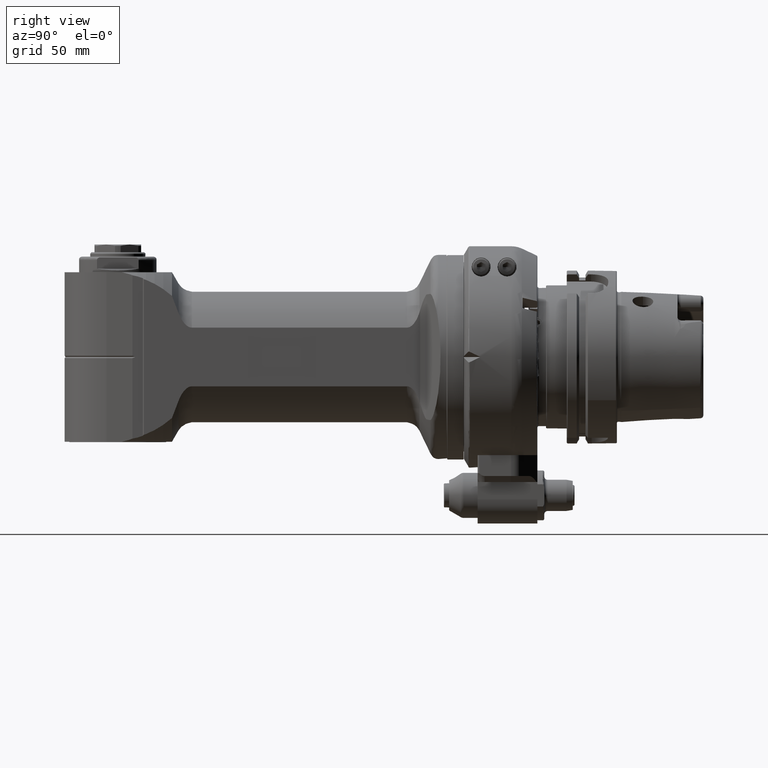
[diagram: clean part render]
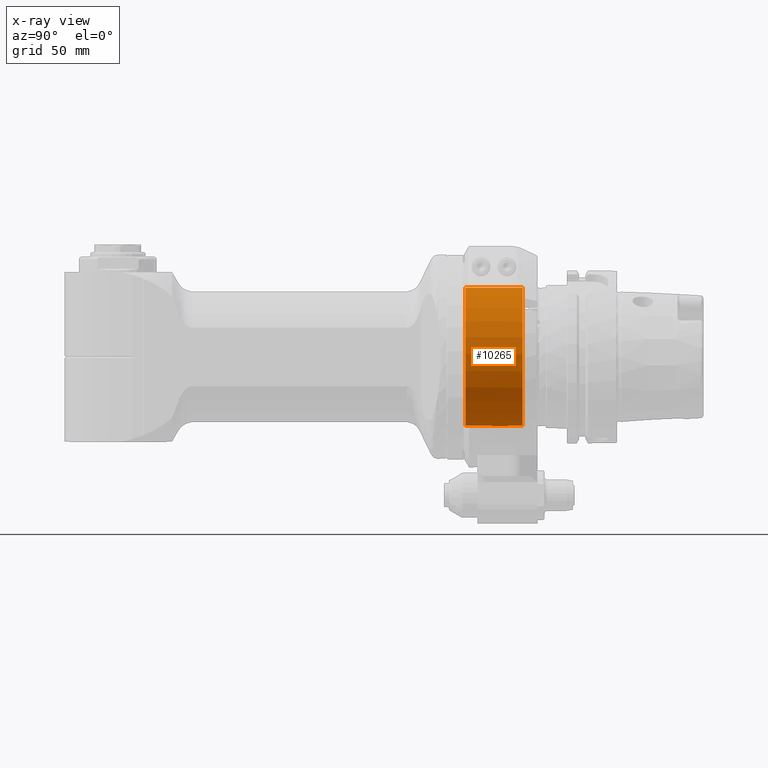
[diagram: x-ray — body ghosted, one internal face saturated and labeled with its STEP entity id]
A machine part, right view, then the same camera in x-ray: the body is ghosted and one INTERNAL B-rep face — a face not visible from any outside direction — is saturated and labeled: STEP entity #10265.
In plain terms, the highlighted cylindrical surface (partial cylindrical patch) has radius 40 mm, axis along (0, -1, 0).
Its self-contained STEP definition (entity closure, byte-faithful):
#393=CYLINDRICAL_SURFACE('',#10994,40.);
#722=CIRCLE('',#10984,40.);
#727=CIRCLE('',#10995,40.);
#728=CIRCLE('',#10996,40.);
#729=CIRCLE('',#10997,40.);
#1279=FACE_OUTER_BOUND('',#1923,.T.);
#1923=EDGE_LOOP('',(#6943,#6944,#6945,#6946,#6947,#6948,#6949,#6950));
#2813=LINE('',#15492,#3480);
#2821=LINE('',#15584,#3488);
#2834=LINE('',#15776,#3501);
#2838=LINE('',#15786,#3505);
#3480=VECTOR('',#12219,32.99999976923);
#3488=VECTOR('',#12249,32.99999976923);
#3501=VECTOR('',#12308,8.499999538462);
#3505=VECTOR('',#12318,8.499999538462);
#4170=VERTEX_POINT('',#15489);
#4171=VERTEX_POINT('',#15491);
#4185=VERTEX_POINT('',#15581);
#4186=VERTEX_POINT('',#15583);
#4205=VERTEX_POINT('',#15711);
#4215=VERTEX_POINT('',#15775);
#4217=VERTEX_POINT('',#15783);
#4218=VERTEX_POINT('',#15785);
#5230=EDGE_CURVE('',#4171,#4170,#2813,.T.);
#5251=EDGE_CURVE('',#4186,#4185,#2821,.T.);
#5276=EDGE_CURVE('',#4186,#4205,#722,.T.);
#5291=EDGE_CURVE('',#4215,#4205,#2834,.T.);
#5295=EDGE_CURVE('',#4171,#4185,#727,.T.);
#5296=EDGE_CURVE('',#4217,#4170,#728,.T.);
#5297=EDGE_CURVE('',#4217,#4218,#2838,.T.);
#5298=EDGE_CURVE('',#4215,#4218,#729,.T.);
#6943=ORIENTED_EDGE('',*,*,#5295,.F.);
#6944=ORIENTED_EDGE('',*,*,#5230,.T.);
#6945=ORIENTED_EDGE('',*,*,#5296,.F.);
#6946=ORIENTED_EDGE('',*,*,#5297,.T.);
#6947=ORIENTED_EDGE('',*,*,#5298,.F.);
#6948=ORIENTED_EDGE('',*,*,#5291,.T.);
#6949=ORIENTED_EDGE('',*,*,#5276,.F.);
#6950=ORIENTED_EDGE('',*,*,#5251,.T.);
#10265=ADVANCED_FACE('',(#1279),#393,.F.);
#10984=AXIS2_PLACEMENT_3D('',#15712,#12282,#12283);
#10994=AXIS2_PLACEMENT_3D('',#15781,#12312,#12313);
#10995=AXIS2_PLACEMENT_3D('',#15782,#12314,#12315);
#10996=AXIS2_PLACEMENT_3D('',#15784,#12316,#12317);
#10997=AXIS2_PLACEMENT_3D('',#15787,#12319,#12320);
#12219=DIRECTION('',(0.,1.,0.));
#12249=DIRECTION('',(0.,-1.,0.));
#12282=DIRECTION('center_axis',(0.,-1.,0.));
#12283=DIRECTION('ref_axis',(-0.0374999961538496,0.,0.999296627777989));
#12308=DIRECTION('',(0.,1.,0.));
#12312=DIRECTION('center_axis',(0.,-1.,0.));
#12313=DIRECTION('ref_axis',(-1.22464679914735E-16,0.,-1.));
#12314=DIRECTION('center_axis',(0.,1.,0.));
#12315=DIRECTION('ref_axis',(0.,0.,-1.));
#12316=DIRECTION('center_axis',(0.,-1.,0.));
#12317=DIRECTION('ref_axis',(0.112499999999996,0.,-0.993651724700361));
#12318=DIRECTION('',(0.,-1.,0.));
#12319=DIRECTION('center_axis',(0.,-1.,0.));
#12320=DIRECTION('ref_axis',(0.,0.,-1.));
#15489=CARTESIAN_POINT('',(1.499999846154,33.99999976923,39.97186511112));
#15491=CARTESIAN_POINT('',(1.499999846154,0.999999999999999,39.97186511112));
#15492=CARTESIAN_POINT('',(1.499999846154,0.999999999999999,39.97186511112));
#15581=CARTESIAN_POINT('',(-1.499999846154,0.999999999999999,39.97186511112));
#15583=CARTESIAN_POINT('',(-1.499999846154,33.99999976923,39.97186511112));
#15584=CARTESIAN_POINT('',(-1.499999846154,33.99999976923,39.97186511112));
#15711=CARTESIAN_POINT('',(-4.5,33.99999976923,-39.74606898801));
#15712=CARTESIAN_POINT('Origin',(0.,33.99999976923,0.));
#15775=CARTESIAN_POINT('',(-4.5,25.50000023077,-39.74606898801));
#15776=CARTESIAN_POINT('',(-4.5,25.50000023077,-39.74606898801));
#15781=CARTESIAN_POINT('Origin',(0.,21.07692284615,0.));
#15782=CARTESIAN_POINT('Origin',(0.,0.999999999999999,0.));
#15783=CARTESIAN_POINT('',(4.5,33.99999976923,-39.74606898801));
#15784=CARTESIAN_POINT('Origin',(0.,33.99999976923,0.));
#15785=CARTESIAN_POINT('',(4.5,25.50000023077,-39.74606898801));
#15786=CARTESIAN_POINT('',(4.5,33.99999976923,-39.74606898801));
#15787=CARTESIAN_POINT('Origin',(0.,25.50000023077,0.));